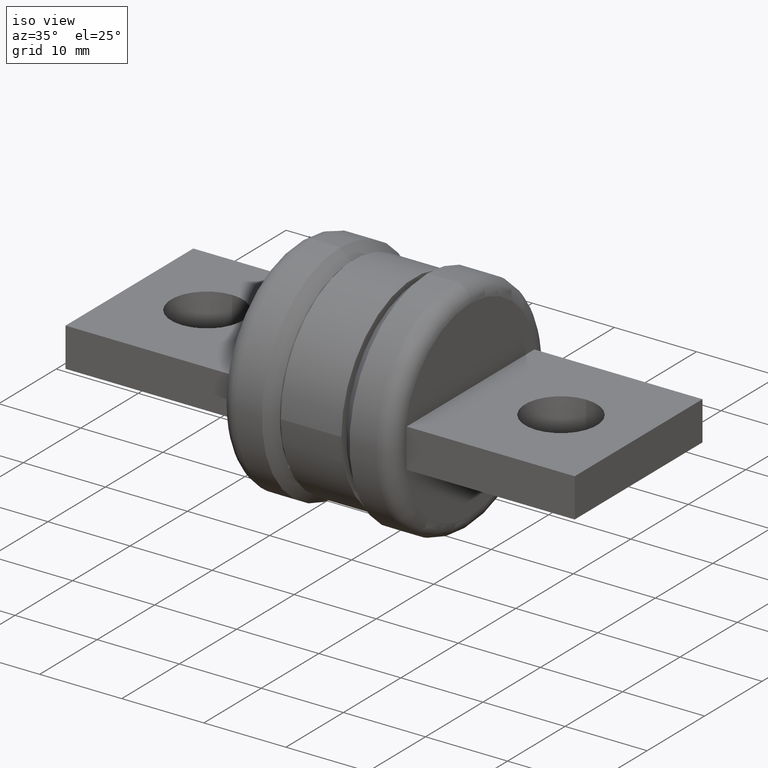
[diagram: clean part render]
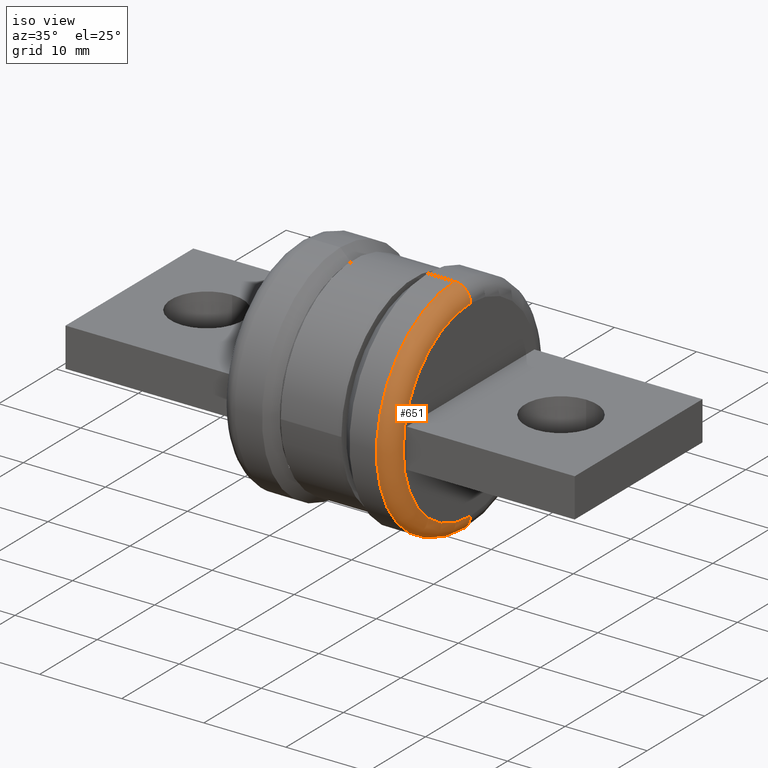
[diagram: same view with one face highlighted and labeled with its STEP entity id]
A machine part, iso view. The second image highlights one B-rep face of the part: STEP entity #651.
In plain terms, the highlighted toroidal blend (fillet) surface has major radius 11.7221 mm and minor (blend) radius 1.905 mm.
Its self-contained STEP definition (entity closure, byte-faithful):
#8 = VERTEX_POINT ( 'NONE', #949 ) ;
#16 = CARTESIAN_POINT ( 'NONE',  ( 0.6132856678774598600, -3.782444770803346600E-017, 0.5364999999999999800 ) ) ;
#31 = EDGE_LOOP ( 'NONE', ( #596, #103, #123, #1461 ) ) ;
#80 = VERTEX_POINT ( 'NONE', #16 ) ;
#103 = ORIENTED_EDGE ( 'NONE', *, *, #1600, .T. ) ;
#123 = ORIENTED_EDGE ( 'NONE', *, *, #447, .F. ) ;
#159 = AXIS2_PLACEMENT_3D ( 'NONE', #270, #335, #939 ) ;
#167 = VERTEX_POINT ( 'NONE', #229 ) ;
#196 = AXIS2_PLACEMENT_3D ( 'NONE', #514, #1132, #780 ) ;
#229 = CARTESIAN_POINT ( 'NONE',  ( 0.6132856678774598600, -9.124907747605719400E-017, -0.5364999999999999800 ) ) ;
#270 = CARTESIAN_POINT ( 'NONE',  ( 0.6132856678774598600, -3.168561220491757200E-017, 5.106276096362055600E-018 ) ) ;
#335 = DIRECTION ( 'NONE',  ( -1.000000000000000000, -1.017949417668852000E-016, 6.808368128482743700E-017 ) ) ;
#338 = CIRCLE ( 'NONE', #159, 0.5364999999999999800 ) ;
#340 = CARTESIAN_POINT ( 'NONE',  ( 0.6882856678774597100, -2.405099157240122500E-017, 3.791200677927629700E-033 ) ) ;
#348 = DIRECTION ( 'NONE',  ( 1.000000000000000000, 1.017949417668851900E-016, 0.0000000000000000000 ) ) ;
#371 = AXIS2_PLACEMENT_3D ( 'NONE', #340, #1125, #468 ) ;
#385 = CIRCLE ( 'NONE', #371, 0.4614999999999999100 ) ;
#439 = CARTESIAN_POINT ( 'NONE',  ( 0.6882856678774597100, -7.528778415885216500E-017, -0.4614999999999999100 ) ) ;
#447 = EDGE_CURVE ( 'NONE', #167, #80, #338, .T. ) ;
#468 = DIRECTION ( 'NONE',  ( 0.0000000000000000000, -1.110223024625155900E-016, -1.000000000000000000 ) ) ;
#494 = DIRECTION ( 'NONE',  ( -6.808368128482743700E-017, -1.110223024625156200E-016, -1.000000000000000000 ) ) ;
#514 = CARTESIAN_POINT ( 'NONE',  ( 0.6132856678774598600, -8.292240479136851200E-017, -0.4614999999999999100 ) ) ;
#531 = AXIS2_PLACEMENT_3D ( 'NONE', #1049, #548, #348 ) ;
#548 = DIRECTION ( 'NONE',  ( 1.017949417668852000E-016, -1.000000000000000000, -1.144237745221972200E-017 ) ) ;
#562 = CARTESIAN_POINT ( 'NONE',  ( 0.6132856678774598600, -3.168561220491757200E-017, 5.106276096362055600E-018 ) ) ;
#596 = ORIENTED_EDGE ( 'NONE', *, *, #1183, .F. ) ;
#608 = FACE_OUTER_BOUND ( 'NONE', #31, .T. ) ;
#627 = TOROIDAL_SURFACE ( 'NONE', #977, 0.4614999999999999100, 0.07499999999999999700 ) ;
#651 = ADVANCED_FACE ( 'NONE', ( #608 ), #627, .T. ) ;
#750 = VERTEX_POINT ( 'NONE', #439 ) ;
#780 = DIRECTION ( 'NONE',  ( 0.0000000000000000000, 1.110223024625154400E-016, 1.000000000000000000 ) ) ;
#801 = DIRECTION ( 'NONE',  ( -1.000000000000000000, -1.017949417668852000E-016, 6.808368128482743700E-017 ) ) ;
#877 = CIRCLE ( 'NONE', #531, 0.07500000000000002500 ) ;
#931 = EDGE_CURVE ( 'NONE', #750, #167, #1368, .T. ) ;
#939 = DIRECTION ( 'NONE',  ( -1.272995337215406900E-016, -1.110223024625156000E-016, -1.000000000000000000 ) ) ;
#949 = CARTESIAN_POINT ( 'NONE',  ( 0.6882856678774597100, -3.357804823731700700E-017, 0.4614999999999999100 ) ) ;
#977 = AXIS2_PLACEMENT_3D ( 'NONE', #562, #801, #494 ) ;
#1049 = CARTESIAN_POINT ( 'NONE',  ( 0.6132856678774598600, -3.696626939911696900E-017, 0.4614999999999999100 ) ) ;
#1125 = DIRECTION ( 'NONE',  ( 1.000000000000000000, 1.017949417668852000E-016, -6.808368128482743700E-017 ) ) ;
#1132 = DIRECTION ( 'NONE',  ( -1.017949417668852200E-016, 1.000000000000000000, -1.110223024625155900E-016 ) ) ;
#1183 = EDGE_CURVE ( 'NONE', #8, #750, #385, .T. ) ;
#1368 = CIRCLE ( 'NONE', #196, 0.07500000000000002500 ) ;
#1461 = ORIENTED_EDGE ( 'NONE', *, *, #931, .F. ) ;
#1600 = EDGE_CURVE ( 'NONE', #8, #80, #877, .T. ) ;